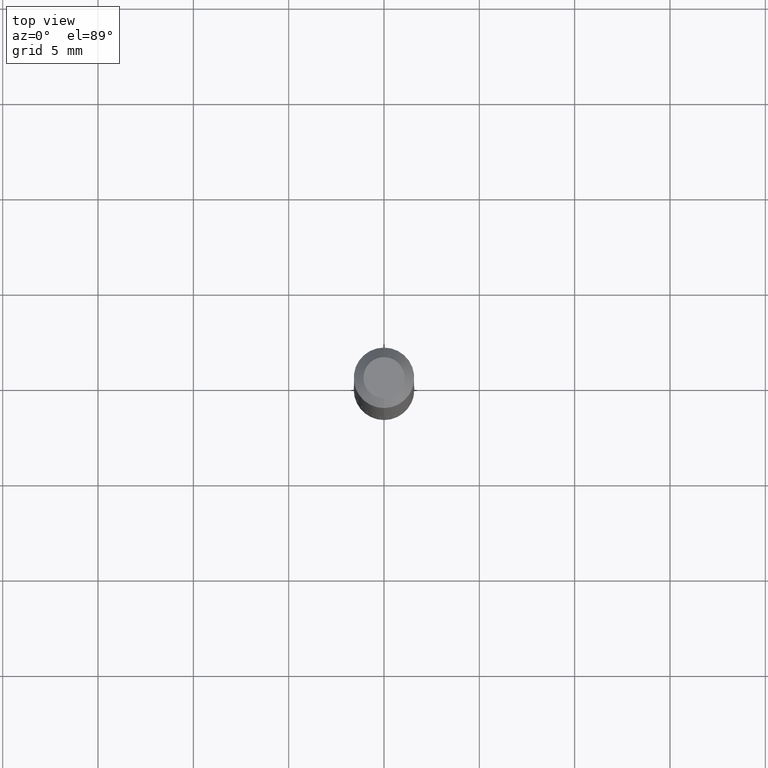
[diagram: clean part render]
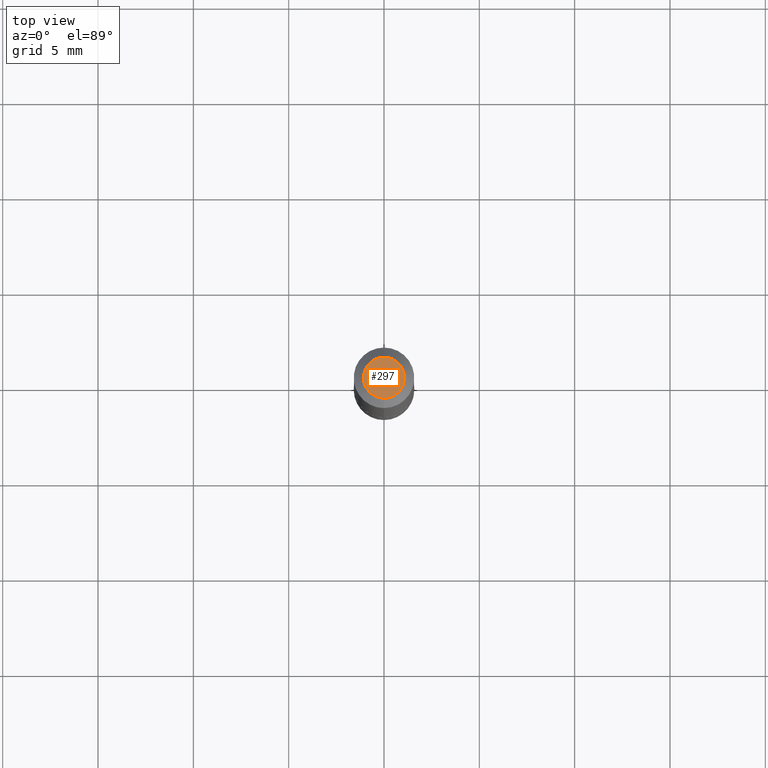
[diagram: same view with one face highlighted and labeled with its STEP entity id]
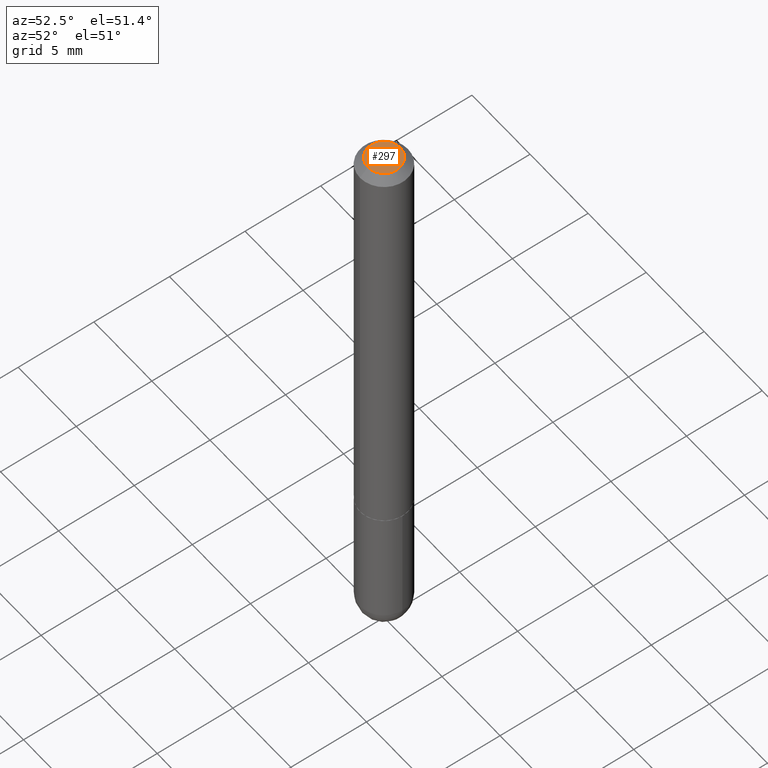
[diagram: same view with one face highlighted and labeled with its STEP entity id]
A machine part, top view. The second image highlights one B-rep face of the part: STEP entity #297.
A second angle (auxiliary view) of the same face is appended — the face is thin or edge-on in the first view.
In plain terms, the highlighted planar face has unit normal (0, -0, -1).
Its self-contained STEP definition (entity closure, byte-faithful):
#50 = EDGE_CURVE ( 'NONE', #258, #409, #112, .T. ) ;
#66 = CARTESIAN_POINT ( 'NONE',  ( -6.136879143860255747E-45, 8.913469058148759608E-31, 2.531171608886515412E-16 ) ) ;
#69 = AXIS2_PLACEMENT_3D ( 'NONE', #116, #181, #341 ) ;
#94 = FACE_OUTER_BOUND ( 'NONE', #380, .T. ) ;
#105 = EDGE_CURVE ( 'NONE', #409, #258, #144, .T. ) ;
#111 = AXIS2_PLACEMENT_3D ( 'NONE', #66, #321, #163 ) ;
#112 = CIRCLE ( 'NONE', #111, 0.04249999999999968386 ) ;
#116 = CARTESIAN_POINT ( 'NONE',  ( -6.136879143860255747E-45, 8.913469058148759608E-31, 2.531171608886515412E-16 ) ) ;
#122 = CARTESIAN_POINT ( 'NONE',  ( -3.601761448830038135E-16, -0.04249999999999968386, 4.027800417622114304E-16 ) ) ;
#128 = CARTESIAN_POINT ( 'NONE',  ( 3.666055405785279275E-16, 0.04249999999999968386, 1.034542800150916889E-16 ) ) ;
#129 = ORIENTED_EDGE ( 'NONE', *, *, #50, .T. ) ;
#144 = CIRCLE ( 'NONE', #69, 0.04249999999999968386 ) ;
#163 = DIRECTION ( 'NONE',  ( -6.982962677686265922E-15, -1.000000000000000000, 3.521479549966140772E-15 ) ) ;
#181 = DIRECTION ( 'NONE',  ( -2.424521167318213835E-29, 3.521479549966140772E-15, 1.000000000000000000 ) ) ;
#224 = DIRECTION ( 'NONE',  ( 2.424521167318213554E-29, -3.521479549966140772E-15, -1.000000000000000000 ) ) ;
#226 = PLANE ( 'NONE',  #357 ) ;
#258 = VERTEX_POINT ( 'NONE', #128 ) ;
#294 = ORIENTED_EDGE ( 'NONE', *, *, #105, .T. ) ;
#297 = ADVANCED_FACE ( 'NONE', ( #94 ), #226, .F. ) ;
#321 = DIRECTION ( 'NONE',  ( -2.424521167318213835E-29, 3.521479549966140772E-15, 1.000000000000000000 ) ) ;
#341 = DIRECTION ( 'NONE',  ( -6.982962677686265922E-15, -1.000000000000000000, 3.521479549966140772E-15 ) ) ;
#357 = AXIS2_PLACEMENT_3D ( 'NONE', #402, #224, #385 ) ;
#380 = EDGE_LOOP ( 'NONE', ( #129, #294 ) ) ;
#385 = DIRECTION ( 'NONE',  ( 6.982962677686265922E-15, 1.000000000000000000, -3.521479549966140772E-15 ) ) ;
#402 = CARTESIAN_POINT ( 'NONE',  ( 2.967759138016640869E-16, 0.04249999999999968386, -2.310430042923408479E-17 ) ) ;
#409 = VERTEX_POINT ( 'NONE', #122 ) ;